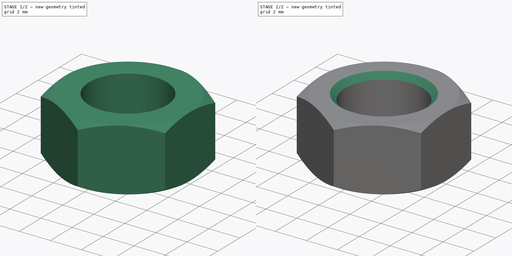
[diagram: build sequence overview — one tinted view per stage of 2, left to right]
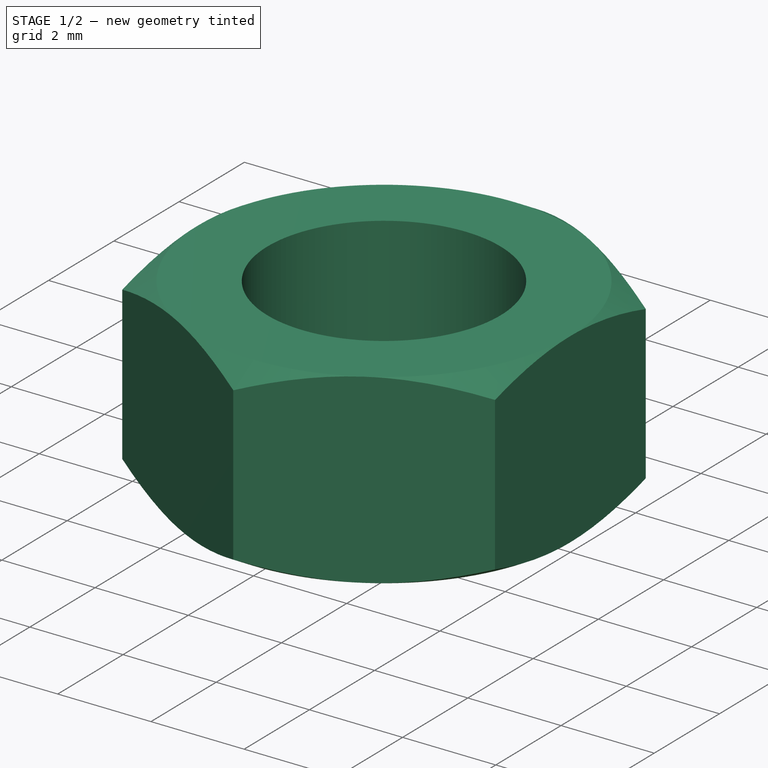
[diagram: stage 1 of 2 — iso view after this stage's code; geometry added in this stage tinted green]
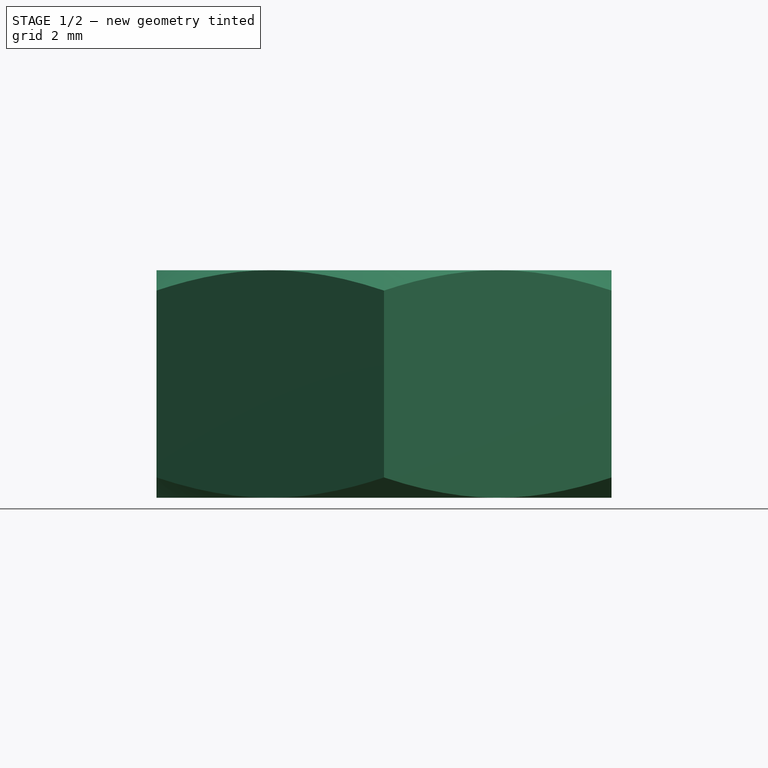
[diagram: stage 1 of 2 — front view after this stage's code; geometry added in this stage tinted green]
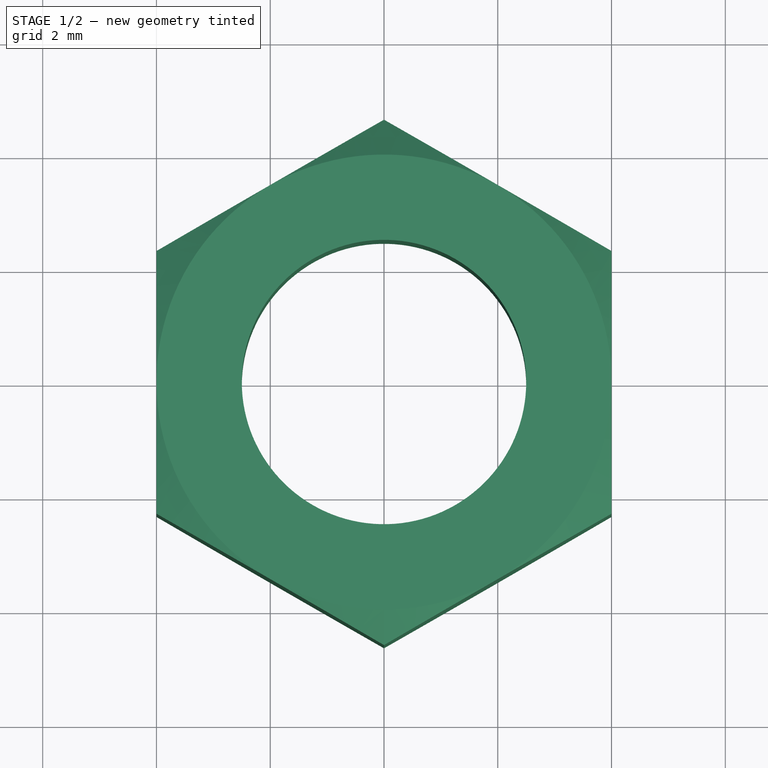
[diagram: stage 1 of 2 — top view after this stage's code; geometry added in this stage tinted green]
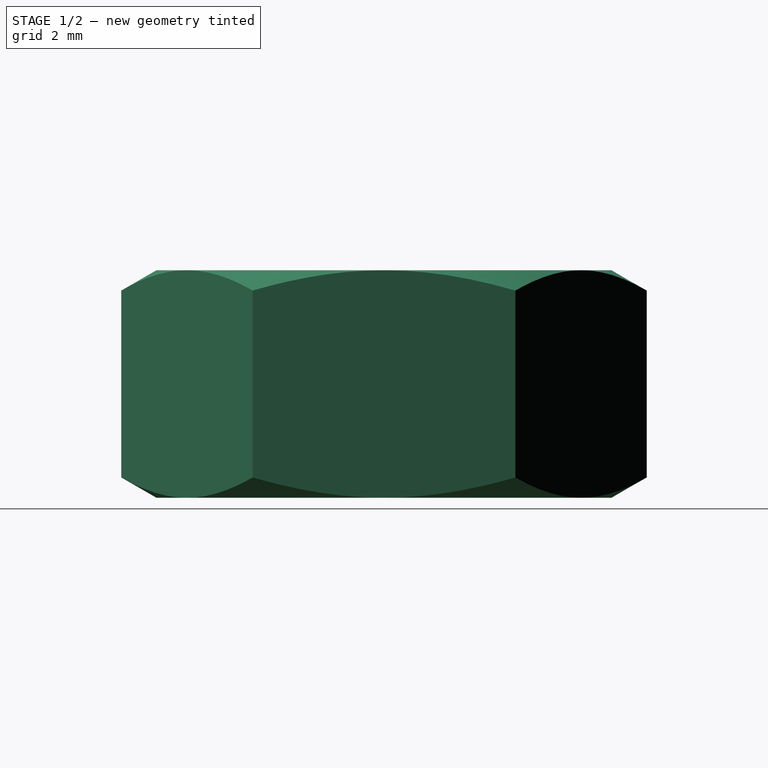
[diagram: stage 1 of 2 — right view after this stage's code; geometry added in this stage tinted green]
FCSTD DOCUMENT  (FreeCAD 0.20R29177 (Git))
Label: ecrouM
License: All rights reserved
LicenseURL: http://en.wikipedia.org/wiki/All_rights_reserved
objects: Sketcher::SketchObject×2, Spreadsheet::Sheet×1, PartDesign::Pad×1, PartDesign::Groove×1, PartDesign::Chamfer×1, PartDesign::Body×1, App::Part×1
note: 9 computed .brp shape members not serialized (recipe doc carries the construction recipe); baked Part::Feature solids carry a one-line shape summary decoded from their .brp

FEATURE [Spreadsheet::Sheet] Spreadsheet001  label="ecrouSp"
  cells = B3=Diam; C3=Ep; D3=Ss; E3=Ee; F3=angle; G3=chanfrain; A4==hiddenref(Part.diametre.String); B4(Diam)==.B8; C4(Ep)==.C8; D4(Ss)==.D8; E4(Ee)==.E8; F4(angle)==.F8; G4(chanfrain)==.G8; A5=M2.5; A6=M3; B6=3; C6=2.4; D6=5.5; E6=6.01; F6=30; G6=0.2; A7=M4; B7=4; C7=3.2; D7=7; E7=7.66; F7=30; G7=0.3; A8=M5; B8=5; C8=4; D8=8; E8=8.789999999999999; F8=30; G8=0.35; A9=M6; B9=6; C9=5; D9=10; E9=1105; F9=30; G9=0.4
  expr: .cells.Bind.B4.ZZ4 = tuple(.cells; <<B>> + str(hiddenref(Part.diametre) + 5); <<ZZ>> + str(hiddenref(Part.diametre) + 5))
FEATURE [Sketcher::SketchObject] Sketch
  FullyConstrained = true
  MapMode = 5
  Support = -> [XY_Plane001]
  expr: Constraints[20] = <<ecrouSp>>.Diam
  expr: Constraints[21] = <<ecrouSp>>.Ss
  sketch-geometry (8):
    g0: Circle CenterX=0 CenterY=0 CenterZ=0 NormalX=0 NormalY=0 NormalZ=1 AngleXU=0 Radius=2.5
    g1: LineSegment StartX=0 StartY=-4.6188 StartZ=0 EndX=4 EndY=-2.3094 EndZ=0
    g2: LineSegment StartX=4 StartY=-2.3094 StartZ=0 EndX=4 EndY=2.3094 EndZ=0
    g3: LineSegment StartX=4 StartY=2.3094 StartZ=0 EndX=-1.235e-13 EndY=4.6188 EndZ=0
    g4: LineSegment StartX=-1.237e-13 StartY=4.6188 StartZ=0 EndX=-4 EndY=2.3094 EndZ=0
    g5: LineSegment StartX=-4 StartY=2.3094 StartZ=0 EndX=-4 EndY=-2.3094 EndZ=0
    g6: LineSegment StartX=-4 StartY=-2.3094 StartZ=0 EndX=0 EndY=-4.6188 EndZ=0
    g7: Circle CenterX=0 CenterY=0 CenterZ=0 NormalX=0 NormalY=0 NormalZ=1 AngleXU=0 Radius=4.6188
  constraints (19):
    c: Coincident(g0,g-1)
    c: Coincident(g1,g2)
    c: Coincident(g2,g3)
    c: Coincident(g3,g4)
    c: Coincident(g4,g5)
    c: Coincident(g5,g6)
    c: Coincident(g6,g1)
    c: Equal(g1, g2-g6) x5
    c: PointOnObject(g1,g7)
    c: PointOnObject(g2,g7)
    c: PointOnObject(g3,g7)
    c: PointOnObject(g4,g7)
    c: PointOnObject(g5,g7)
    c: PointOnObject(g6,g7)
    c: Coincident(g7,g0)
    c: PointOnObject(g6,g-2)
    c: Diameter(g0) = 5
    c: DistanceX(g4,g2) = 8
    c: DistanceY(g1,g3) = 9.2376  'hexagoneLong'
FEATURE [PartDesign::Pad] Pad
  Direction = (0,0,1)
  Length = 4
  Length2 = 10
  Midplane = true
  Profile = -> Sketch
  ReferenceAxis = -> Sketch [N_Axis]
  Type = 0
  expr: Length = <<ecrouSp>>.Ep
FEATURE [Sketcher::SketchObject] Sketch001
  FullyConstrained = true
  MapMode = 5
  Placement = pos=(0,0,0) rot=(0.57735,0.57735,0.57735;2.0944rad)
  Support = -> [YZ_Plane001]
  expr: Constraints[13] = <<ecrouSp>>.Ep
  expr: Constraints[14] = <<Sketch>>.Constraints.hexagoneLong / 2
  expr: Constraints[5] = <<ecrouSp>>.Ss / 2
  expr: Constraints[6] = <<ecrouSp>>.angle
  sketch-geometry (6):
    g0: LineSegment StartX=-4 StartY=2 StartZ=0 EndX=-4.6188 EndY=1.64273 EndZ=0
    g1: LineSegment StartX=-4.6188 StartY=1.64273 StartZ=0 EndX=-4.6188 EndY=2 EndZ=0
    g2: LineSegment StartX=-4.6188 StartY=2 StartZ=0 EndX=-4 EndY=2 EndZ=0
    g3: LineSegment StartX=-4 StartY=-2 StartZ=0 EndX=-4.6188 EndY=-2 EndZ=0
    g4: LineSegment StartX=-4.6188 StartY=-2 StartZ=0 EndX=-4.6188 EndY=-1.64273 EndZ=0
    g5: LineSegment StartX=-4.6188 StartY=-1.64273 StartZ=0 EndX=-4 EndY=-2 EndZ=0
  constraints (15):
    c: Coincident(g0,g1)
    c: Vertical(g1)
    c: Coincident(g1,g2)
    c: Coincident(g2,g0)
    c: Horizontal(g2)
    c: DistanceX(g0,g-1) = 4
    c: Angle(g2,g0) = 0.523599
    c: Coincident(g3,g4)
    c: Coincident(g4,g5)
    c: Coincident(g5,g3)
    c: Symmetric(g4,g0,g-1)
    c: Symmetric(g3,g0,g-1)
    c: Symmetric(g3,g1,g-1)
    c: DistanceY(g3,g0) = 4
    c: DistanceX(g3,g-1) = 4.6188
FEATURE [PartDesign::Groove] Groove
  Angle = 360
  Axis = (-2e-16,3e-16,1)
  Base = (0,0,0)
  BaseFeature = -> Pad
  Profile = -> Sketch001
  ReferenceAxis = -> Sketch001 [V_Axis]
  Reversed = true
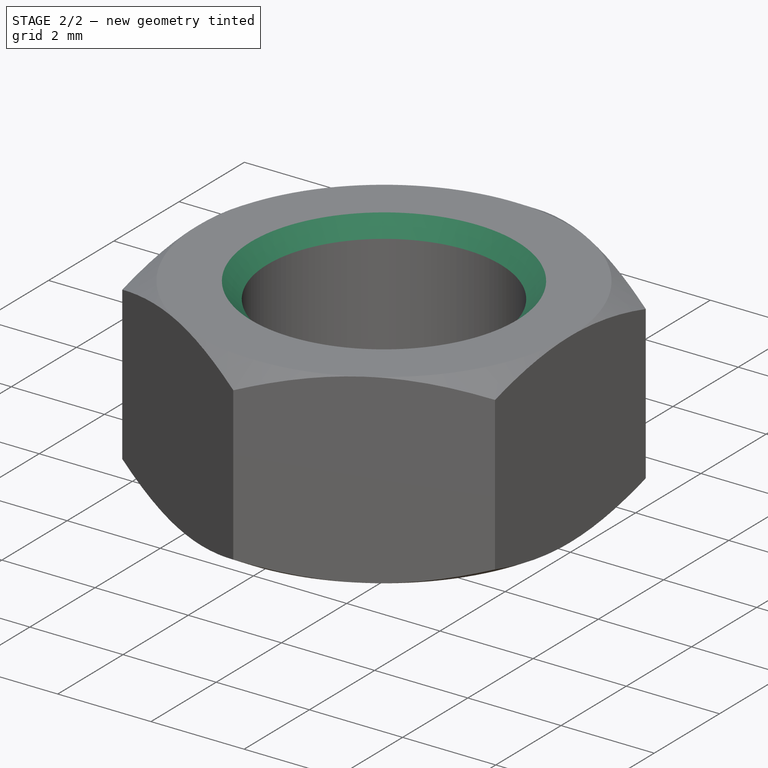
[diagram: stage 2 of 2 — iso view after this stage's code; geometry added in this stage tinted green]
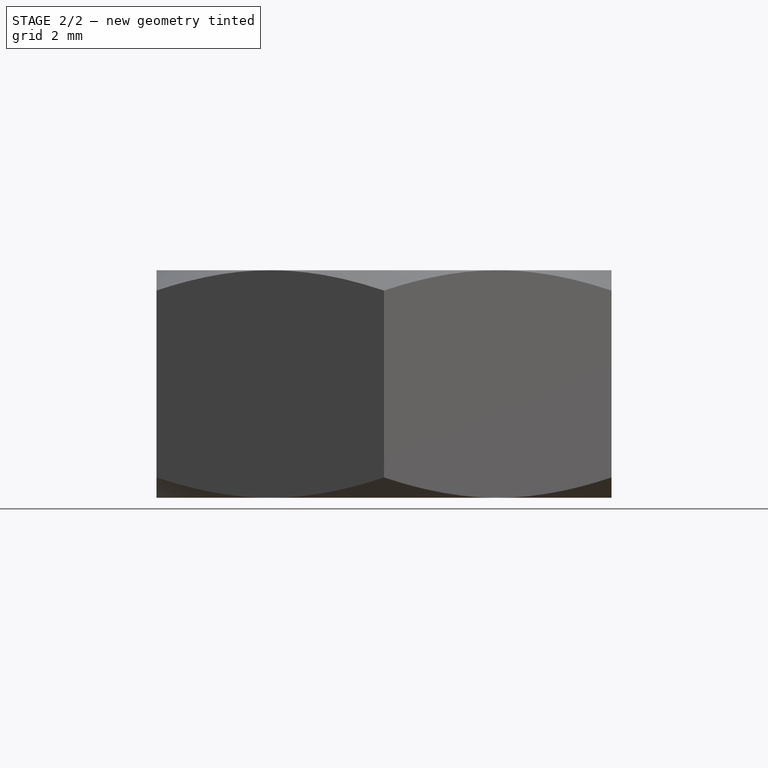
[diagram: stage 2 of 2 — front view after this stage's code; geometry added in this stage tinted green]
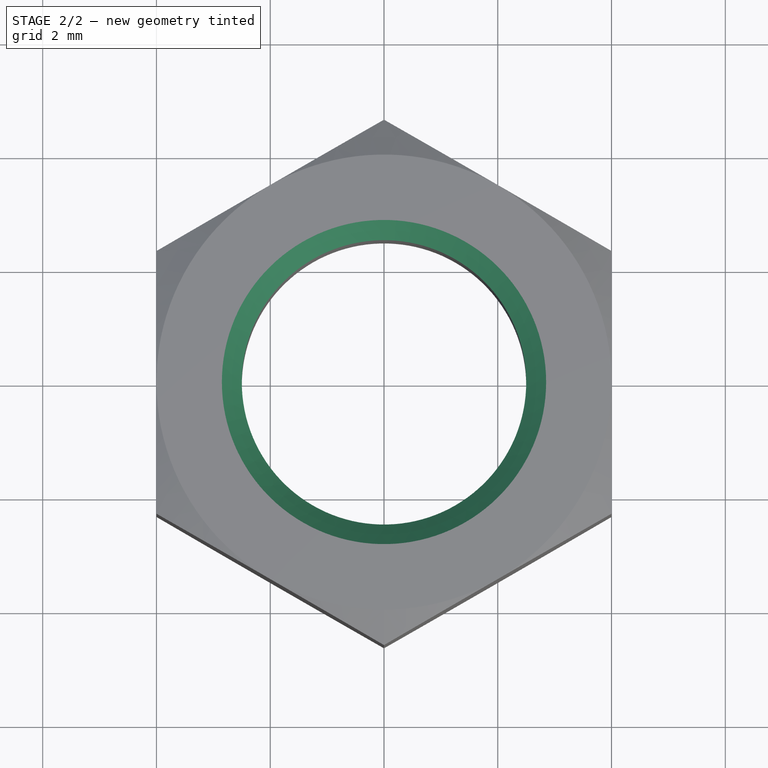
[diagram: stage 2 of 2 — top view after this stage's code; geometry added in this stage tinted green]
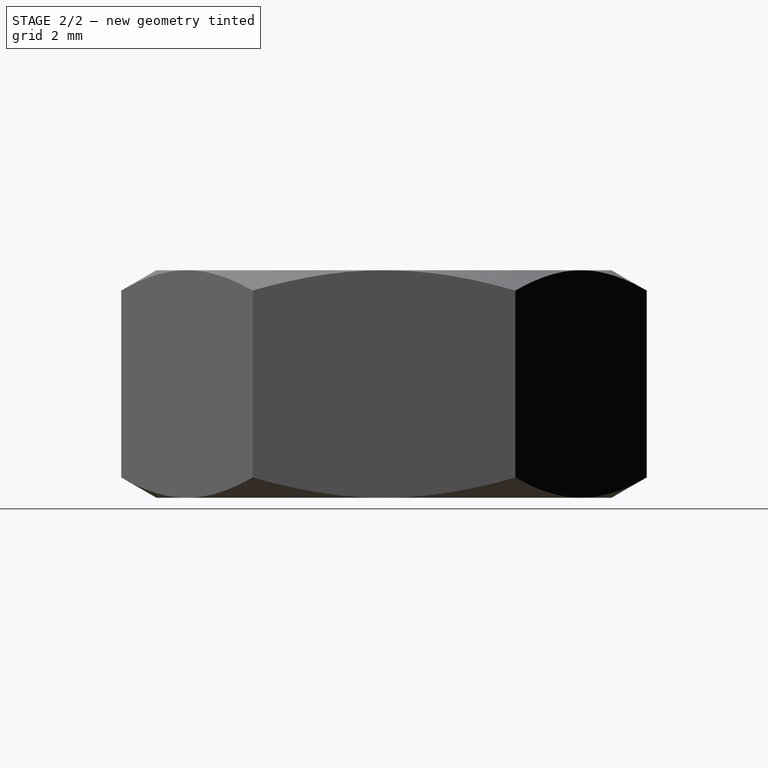
[diagram: stage 2 of 2 — right view after this stage's code; geometry added in this stage tinted green]
FEATURE [PartDesign::Chamfer] Chamfer
  Angle = 45
  Base = -> Groove [Edge39,Edge28]
  BaseFeature = -> Groove
  ChamferType = 0
  FlipDirection = false
  Size = 0.35
  Size2 = 1
  SupportTransform = false
  UseAllEdges = false
  expr: Size = <<ecrouSp>>.chanfrain
FEATURE [PartDesign::Body] Body  label="ecrouBdy"
  Group = -> [Sketch,Pad,Sketch001,Groove,Chamfer]
  Origin = -> Origin001
  Tip = -> Chamfer
FEATURE [App::Part] Part  label="ecrouPrt"
  Group = -> [Body,Spreadsheet001]
  Origin = -> Origin
  diametre = 3
  expr: .diametre.Enum = Spreadsheet001.cells[<<A5:|>>]
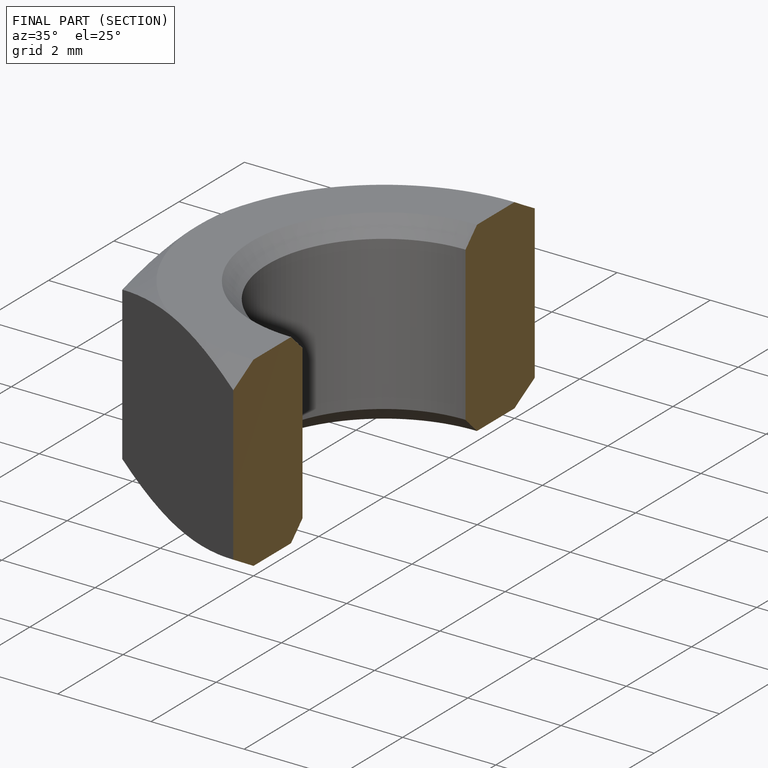
[diagram: finished part — half-section view (interior)]
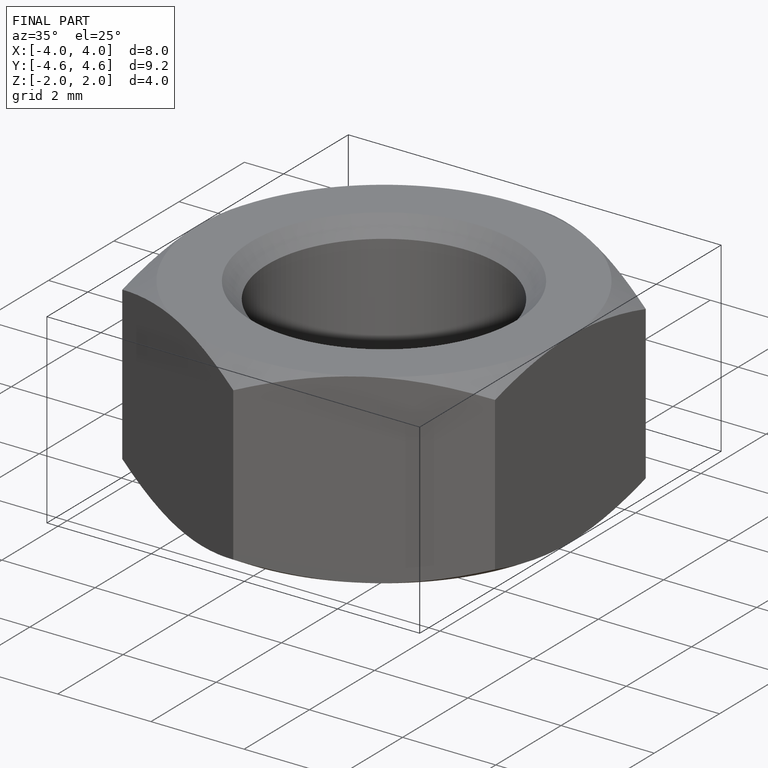
[diagram: finished part — iso view with bounding-box wireframe]
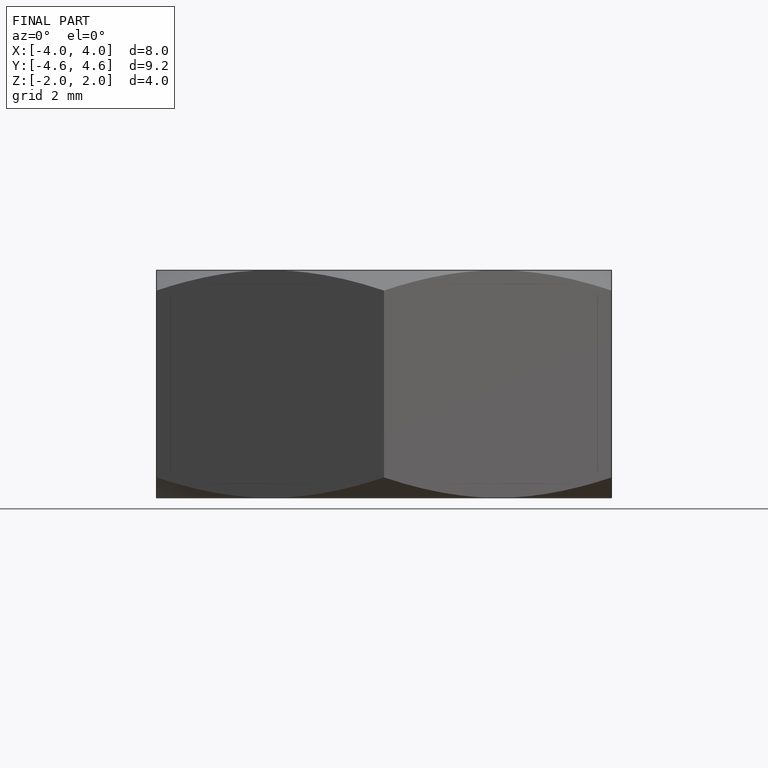
[diagram: finished part — front view with bounding-box wireframe]
